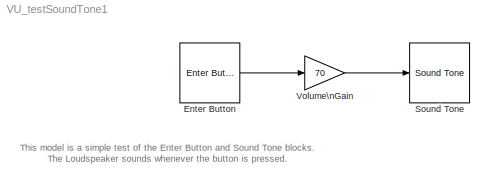
MODEL VU_testSoundTone1
KIND model
BLOCK [Reference] Enter Button  REF=lego_nxt_lib/Enter Button  (lib defined in mdl_3d9a4c0387f8)
  Ports = [0, 1]
  SID = 25
  SourceBlock = lego_nxt_lib/Enter Button
  SourceType = Enter Button
  st = 0.1
BLOCK [Reference] Sound Tone  REF=lego_nxt_lib/Sound Tone  (lib defined in mdl_3d9a4c0387f8)
  FunctionWithSeparateData = off
  Ports = [1]
  RTWMemSecDataConstants = Inherit from model
  RTWMemSecDataInternal = Inherit from model
  RTWMemSecDataParameters = Inherit from model
  RTWMemSecFuncExecute = Inherit from model
  RTWMemSecFuncInitTerm = Inherit from model
  SID = 35
  ShowPortLabels = FromPortIcon
  SourceBlock = lego_nxt_lib/Sound Tone
  SourceType = Sound Tone
  SystemSampleTime = -1
  freq = 220
  freqsrc = Internal
  vol = 70
  volsrc = External
BLOCK [Gain] Volume\nGain
  Gain = 70
  OutDataTypeStr = uint8
  ParamDataTypeStr = Inherit: Inherit via internal rule
  SID = 34
  SaturateOnIntegerOverflow = off
ANNOTATION (root): This model is a simple test of the Enter Button and Sound Tone blocks.\nThe Loudspeaker sounds whenever the button is pressed.
LINE Enter Button:1 -> Volume\nGain:1
LINE Volume\nGain:1 -> Sound Tone:1
